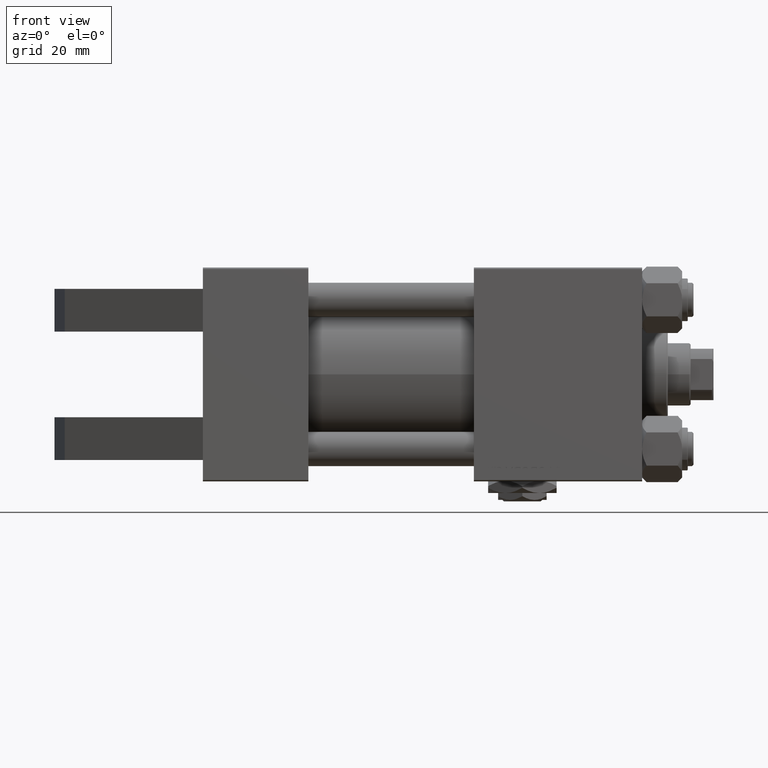
[diagram: clean part render]
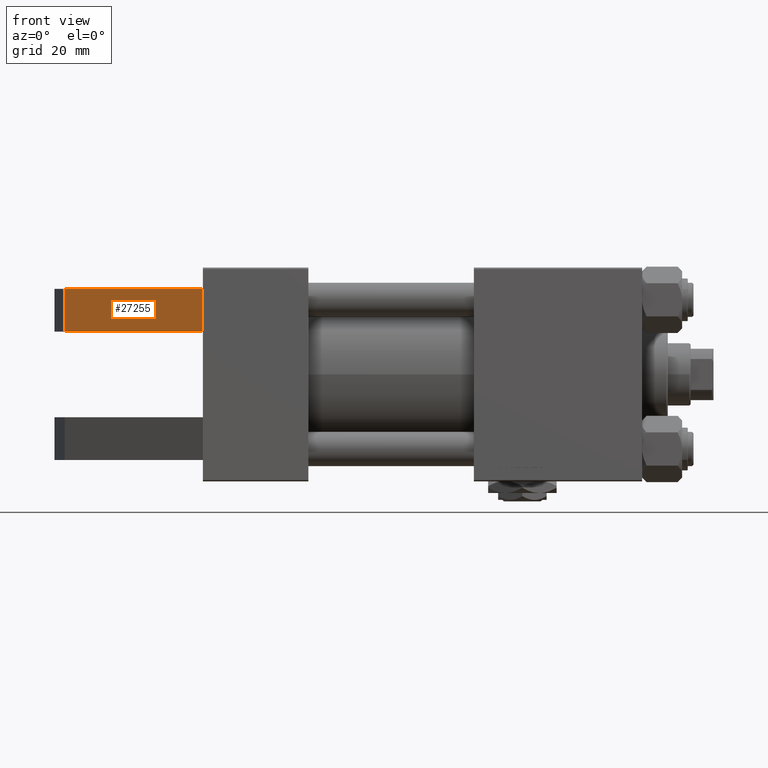
[diagram: same view with one face highlighted and labeled with its STEP entity id]
A machine part, front view. The second image highlights one B-rep face of the part: STEP entity #27255.
In plain terms, the highlighted planar face has unit normal (-0.4566, -0.8897, -0).
Its self-contained STEP definition (entity closure, byte-faithful):
#575 = ORIENTED_EDGE ( 'NONE', *, *, #33545, .T. ) ;
#1272 = AXIS2_PLACEMENT_3D ( 'NONE', #21791, #25187, #28839 ) ;
#3638 = CARTESIAN_POINT ( 'NONE',  ( -48.43732805352595960, -30.00000000000000000, -12.64017464471899110 ) ) ;
#4534 = LINE ( 'NONE', #16486, #32602 ) ;
#4682 = VERTEX_POINT ( 'NONE', #42053 ) ;
#5166 = EDGE_CURVE ( 'NONE', #9988, #4682, #4534, .T. ) ;
#6425 = ORIENTED_EDGE ( 'NONE', *, *, #15337, .F. ) ;
#6807 = VECTOR ( 'NONE', #34080, 1000.000000000000000 ) ;
#8687 = DIRECTION ( 'NONE',  ( -0.000000000000000000, 1.000000000000000000, -0.000000000000000000 ) ) ;
#9988 = VERTEX_POINT ( 'NONE', #35983 ) ;
#10754 = EDGE_CURVE ( 'NONE', #50618, #13798, #39954, .T. ) ;
#12156 = CARTESIAN_POINT ( 'NONE',  ( -48.43732805352595960, -30.00000000000000000, -12.64017464471899110 ) ) ;
#13565 = CARTESIAN_POINT ( 'NONE',  ( -48.43732805352595960, -15.00000000000000000, -12.64017464471899110 ) ) ;
#13578 = EDGE_LOOP ( 'NONE', ( #6425, #30343, #575, #28870 ) ) ;
#13798 = VERTEX_POINT ( 'NONE', #22279 ) ;
#14000 = FACE_OUTER_BOUND ( 'NONE', #13578, .T. ) ;
#15337 = EDGE_CURVE ( 'NONE', #4682, #13798, #18234, .T. ) ;
#16486 = CARTESIAN_POINT ( 'NONE',  ( 0.000000000000000000, -30.00000000000000000, -37.50000000000000711 ) ) ;
#18234 = LINE ( 'NONE', #13565, #6807 ) ;
#20200 = DIRECTION ( 'NONE',  ( -0.000000000000000000, 1.000000000000000000, -0.000000000000000000 ) ) ;
#20547 = VECTOR ( 'NONE', #44837, 1000.000000000000000 ) ;
#21791 = CARTESIAN_POINT ( 'NONE',  ( -48.43732805352595960, -30.00000000000000000, -12.64017464471899110 ) ) ;
#22279 = CARTESIAN_POINT ( 'NONE',  ( -48.43732805352595960, -15.00000000000000000, -12.64017464471899110 ) ) ;
#22677 = VECTOR ( 'NONE', #20200, 1000.000000000000000 ) ;
#25187 = DIRECTION ( 'NONE',  ( -0.4566099510066927158, 0.000000000000000000, -0.8896669897448514774 ) ) ;
#27255 = ADVANCED_FACE ( 'NONE', ( #14000 ), #40778, .T. ) ;
#28839 = DIRECTION ( 'NONE',  ( -0.8896669897448514774, 0.000000000000000000, 0.4566099510066927158 ) ) ;
#28870 = ORIENTED_EDGE ( 'NONE', *, *, #10754, .T. ) ;
#30343 = ORIENTED_EDGE ( 'NONE', *, *, #5166, .F. ) ;
#31675 = LINE ( 'NONE', #43632, #20547 ) ;
#32602 = VECTOR ( 'NONE', #8687, 1000.000000000000000 ) ;
#33545 = EDGE_CURVE ( 'NONE', #9988, #50618, #31675, .T. ) ;
#34080 = DIRECTION ( 'NONE',  ( -0.8896669897448514774, 0.000000000000000000, 0.4566099510066927158 ) ) ;
#35983 = CARTESIAN_POINT ( 'NONE',  ( 0.000000000000000000, -30.00000000000000000, -37.50000000000000711 ) ) ;
#39954 = LINE ( 'NONE', #12156, #22677 ) ;
#40778 = PLANE ( 'NONE',  #1272 ) ;
#42053 = CARTESIAN_POINT ( 'NONE',  ( 0.000000000000000000, -15.00000000000000000, -37.50000000000000711 ) ) ;
#43632 = CARTESIAN_POINT ( 'NONE',  ( -48.43732805352595960, -30.00000000000000000, -12.64017464471899110 ) ) ;
#44837 = DIRECTION ( 'NONE',  ( -0.8896669897448514774, 0.000000000000000000, 0.4566099510066927158 ) ) ;
#50618 = VERTEX_POINT ( 'NONE', #3638 ) ;